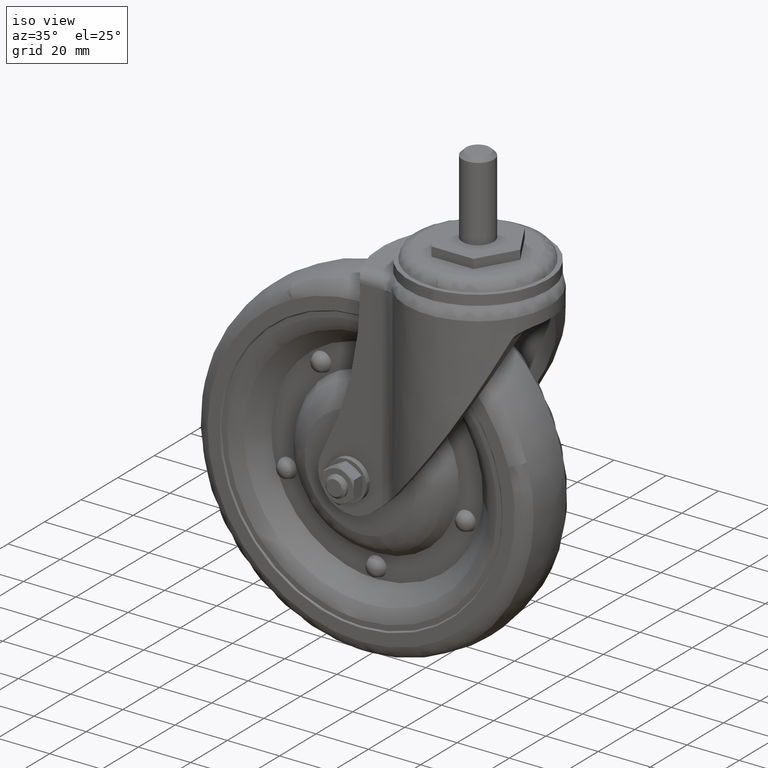
[diagram: clean part render]
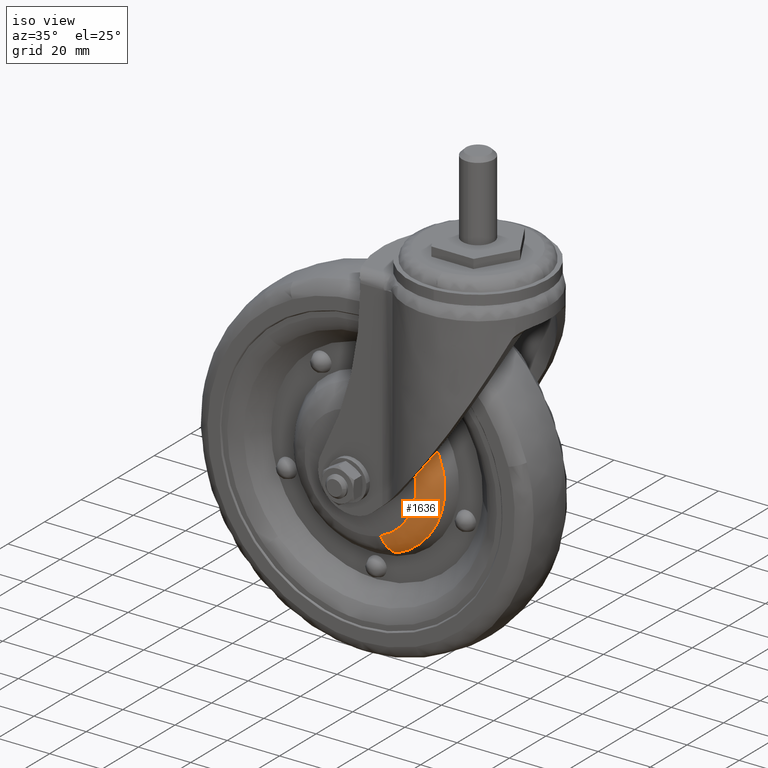
[diagram: same view with one face highlighted and labeled with its STEP entity id]
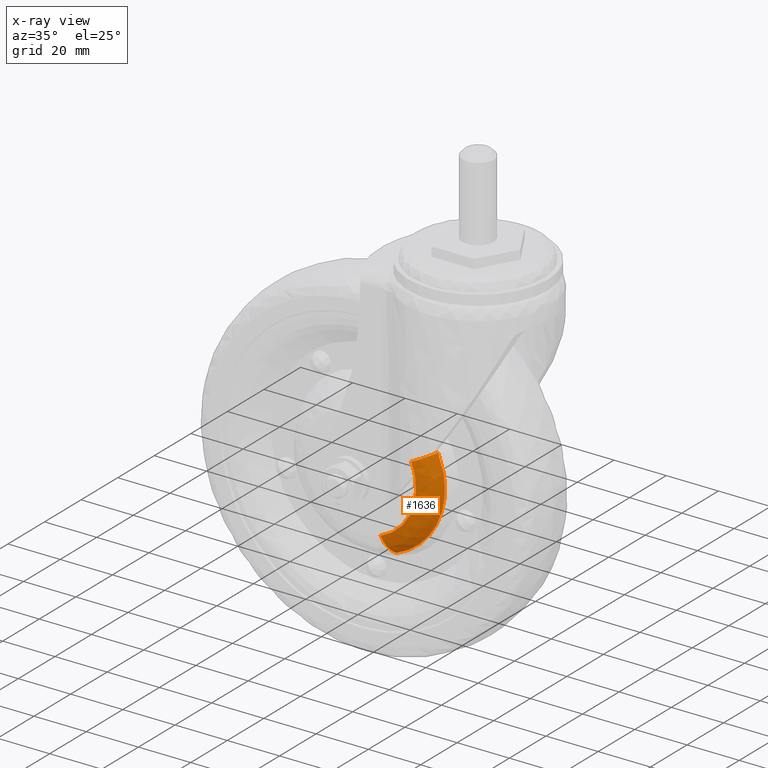
[diagram: x-ray of the same camera — body ghosted, the highlighted face saturated]
A machine part, iso view. The second image highlights one B-rep face of the part: STEP entity #1636.
The next image is the same camera in x-ray: the body ghosted, the highlighted face saturated — about 0% of this face is hidden behind the body in this view.
In plain terms, the highlighted face is a freeform B-spline surface patch.
Its self-contained STEP definition (entity closure, byte-faithful):
#303=CARTESIAN_POINT('',(-9.658121976102891,-8.055709182208840,-74.006610890971672));
#304=VERTEX_POINT('',#303);
#318=CARTESIAN_POINT('',(-25.532604611782620,-8.055721030529806,-112.984881207393300));
#319=VERTEX_POINT('',#318);
#320=CARTESIAN_POINT('',(-9.658121976102891,-8.055709182208840,-74.006610890971672));
#321=CARTESIAN_POINT('',(-7.056255301291983,-8.055710395871445,-79.721175798526573));
#322=CARTESIAN_POINT('',(-7.056256161512538,-8.055712032979356,-86.000185847456905));
#323=CARTESIAN_POINT('',(-7.056258876525137,-8.055717199989797,-105.817884039188810));
#324=CARTESIAN_POINT('',(-25.532604611782627,-8.055721030529806,-112.984881207393330));
#332=(BOUNDED_CURVE()B_SPLINE_CURVE(2,(#320,#321,#322,#323,#324),.UNSPECIFIED.,.F.,.U.)B_SPLINE_CURVE_WITH_KNOTS((3,2,3),(0.179624536282348,0.250000000000000,0.438590655708729),.UNSPECIFIED.)CURVE()GEOMETRIC_REPRESENTATION_ITEM()RATIONAL_B_SPLINE_CURVE((0.881519678321216,0.917550015624991,1.0,0.779052303245323,0.891453974557029))REPRESENTATION_ITEM(''));
#333=EDGE_CURVE('',#304,#319,#332,.T.);
#1496=CARTESIAN_POINT('',(-28.270893898526420,-12.996301322084500,-105.925637374638800));
#1497=VERTEX_POINT('',#1496);
#1498=CARTESIAN_POINT('',(-28.270893898526420,-12.996301322084504,-105.925637374638780));
#1499=CARTESIAN_POINT('',(-26.448997876749932,-12.444649690762299,-110.622441441599680));
#1500=CARTESIAN_POINT('',(-25.532604611782624,-8.055721030529806,-112.984881207393390));
#1508=(BOUNDED_CURVE()B_SPLINE_CURVE(2,(#1498,#1499,#1500),.UNSPECIFIED.,.F.,.U.)B_SPLINE_CURVE_WITH_KNOTS((3,3),(-1.607258274622461,-0.392527300304600),.UNSPECIFIED.)CURVE()GEOMETRIC_REPRESENTATION_ITEM()RATIONAL_B_SPLINE_CURVE((0.894814154150960,0.798181819320431,0.894848275374680))REPRESENTATION_ITEM(''));
#1509=EDGE_CURVE('',#1497,#319,#1508,.T.);
#1558=CARTESIAN_POINT('',(-16.549264569104292,-12.996311337018600,-77.144175563312757));
#1559=VERTEX_POINT('',#1558);
#1573=CARTESIAN_POINT('',(-16.549264569104288,-12.996311337018605,-77.144175563312757));
#1574=CARTESIAN_POINT('',(-11.964300738058512,-12.444683654541839,-75.056622382109552));
#1575=CARTESIAN_POINT('',(-9.658121976102891,-8.055709182208842,-74.006610890971672));
#1583=(BOUNDED_CURVE()B_SPLINE_CURVE(2,(#1573,#1574,#1575),.UNSPECIFIED.,.F.,.U.)B_SPLINE_CURVE_WITH_KNOTS((3,3),(-1.607266385544406,-0.392525462057237),.UNSPECIFIED.)CURVE()GEOMETRIC_REPRESENTATION_ITEM()RATIONAL_B_SPLINE_CURVE((0.915406787239404,0.816548635292996,0.915440672799208))REPRESENTATION_ITEM(''));
#1584=EDGE_CURVE('',#1559,#304,#1583,.T.);
#1593=CARTESIAN_POINT('',(-16.956438881928463,-13.035151435403829,-77.329563966468328));
#1594=CARTESIAN_POINT('',(-8.285814848396768,-13.035151435403828,-96.373125084539865));
#1595=CARTESIAN_POINT('',(-27.329375966468316,-13.035151435403829,-105.043749118071560));
#1596=CARTESIAN_POINT('',(-27.874393978068436,-13.035151435403833,-105.291898413299920));
#1597=CARTESIAN_POINT('',(-28.432712109784195,-13.035151435403828,-105.508470732603020));
#1598=CARTESIAN_POINT('',(-11.828603722636503,-12.673207954178066,-74.994836207490863));
#1599=CARTESIAN_POINT('',(-0.823251930127342,-12.673207954178064,-99.166232484854319));
#1600=CARTESIAN_POINT('',(-24.994648207490833,-12.673207954178066,-110.171584277363520));
#1601=CARTESIAN_POINT('',(-25.686422516665932,-12.673207954178066,-110.486552413508060));
#1602=CARTESIAN_POINT('',(-26.395078252159237,-12.673207954178068,-110.761440882115690));
#1603=CARTESIAN_POINT('',(-9.461777856445906,-7.661870268514234,-73.917209123389327));
#1604=CARTESIAN_POINT('',(2.621201020164782,-7.661870268514233,-100.455431266943410));
#1605=CARTESIAN_POINT('',(-23.917021123389304,-7.661870268514234,-112.538410143554160));
#1606=CARTESIAN_POINT('',(-24.676532906632257,-7.661870268514234,-112.884219474104630));
#1607=CARTESIAN_POINT('',(-25.454579119437810,-7.661870268514234,-113.186024597850960));
#1615=(BOUNDED_SURFACE()B_SPLINE_SURFACE(2,2,((#1593,#1598,#1603),(#1594,#1599,#1604),(#1595,#1600,#1605),(#1596,#1601,#1606),(#1597,#1602,#1607)),.UNSPECIFIED.,.F.,.F.,.U.)B_SPLINE_SURFACE_WITH_KNOTS((3,2,3),(3,3),(0.0,48.313017987813197,50.245536864330347),(0.0,10.512018581978801),.UNSPECIFIED.)GEOMETRIC_REPRESENTATION_ITEM()RATIONAL_B_SPLINE_SURFACE(((0.925776088495831,0.806177639949314,0.925813362231084),(0.654622550035759,0.570053676049127,0.654648906546717),(0.925776088495831,0.806177639949314,0.925813362231084),(0.914929957301115,0.796732690400721,0.914966794347812),(0.904951515774481,0.788043336095423,0.904987951067675)))REPRESENTATION_ITEM('')SURFACE());
#1616=ORIENTED_EDGE('',*,*,#333,.F.);
#1617=ORIENTED_EDGE('',*,*,#1584,.F.);
#1618=CARTESIAN_POINT('',(-28.270893898526413,-12.996301322084500,-105.925637374638780));
#1619=CARTESIAN_POINT('',(-14.628000461845065,-12.996302683372694,-100.633563370370450));
#1620=CARTESIAN_POINT('',(-14.628000628291741,-12.996308024342660,-86.000279393603421));
#1621=CARTESIAN_POINT('',(-14.628000681029175,-12.996309716590973,-81.363827530898320));
#1622=CARTESIAN_POINT('',(-16.549264569104285,-12.996311337018600,-77.144175563312757));
#1630=(BOUNDED_CURVE()B_SPLINE_CURVE(2,(#1618,#1619,#1620,#1621,#1622),.UNSPECIFIED.,.F.,.U.)B_SPLINE_CURVE_WITH_KNOTS((3,2,3),(0.561409360776143,0.750000000000000,0.820376346579243),.UNSPECIFIED.)CURVE()GEOMETRIC_REPRESENTATION_ITEM()RATIONAL_B_SPLINE_CURVE((0.891453954906778,0.779052322558551,1.0,0.917548981288297,0.881518774325927))REPRESENTATION_ITEM(''));
#1631=EDGE_CURVE('',#1497,#1559,#1630,.T.);
#1632=ORIENTED_EDGE('',*,*,#1631,.F.);
#1633=ORIENTED_EDGE('',*,*,#1509,.T.);
#1634=EDGE_LOOP('',(#1616,#1617,#1632,#1633));
#1635=FACE_OUTER_BOUND('',#1634,.T.);
#1636=ADVANCED_FACE('',(#1635),#1615,.T.);